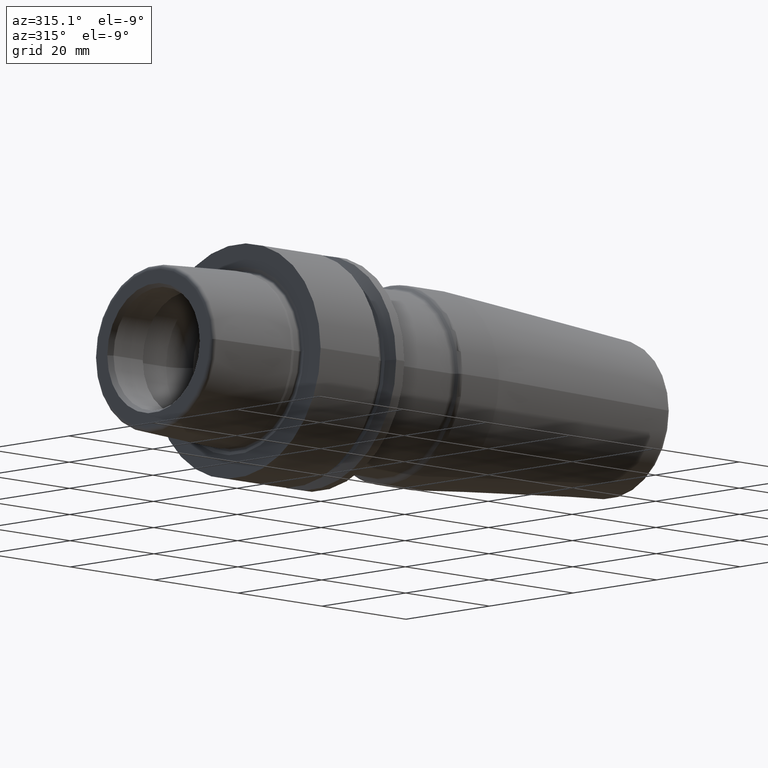
[diagram: clean part render]
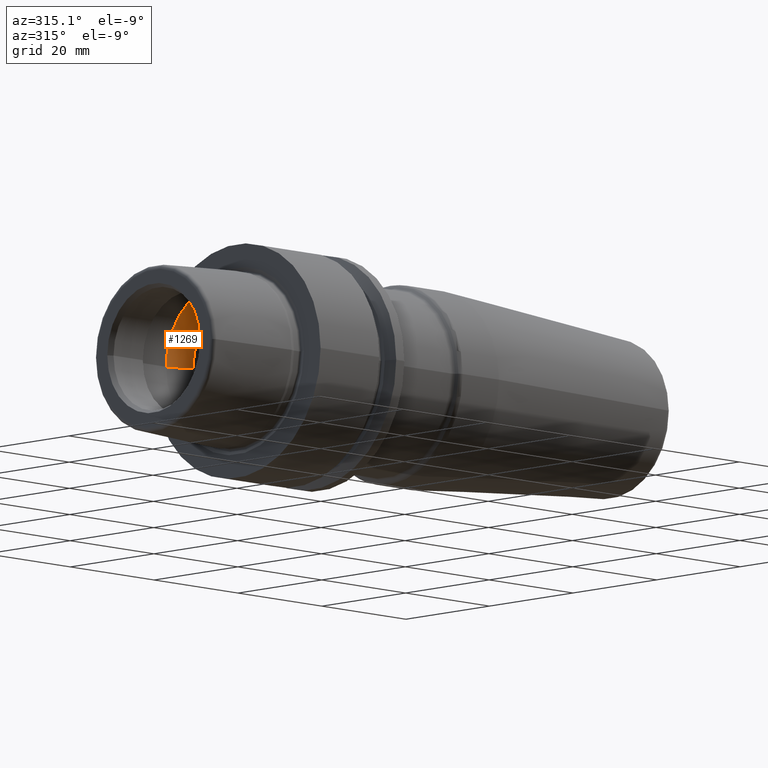
[diagram: same view with one face highlighted and labeled with its STEP entity id]
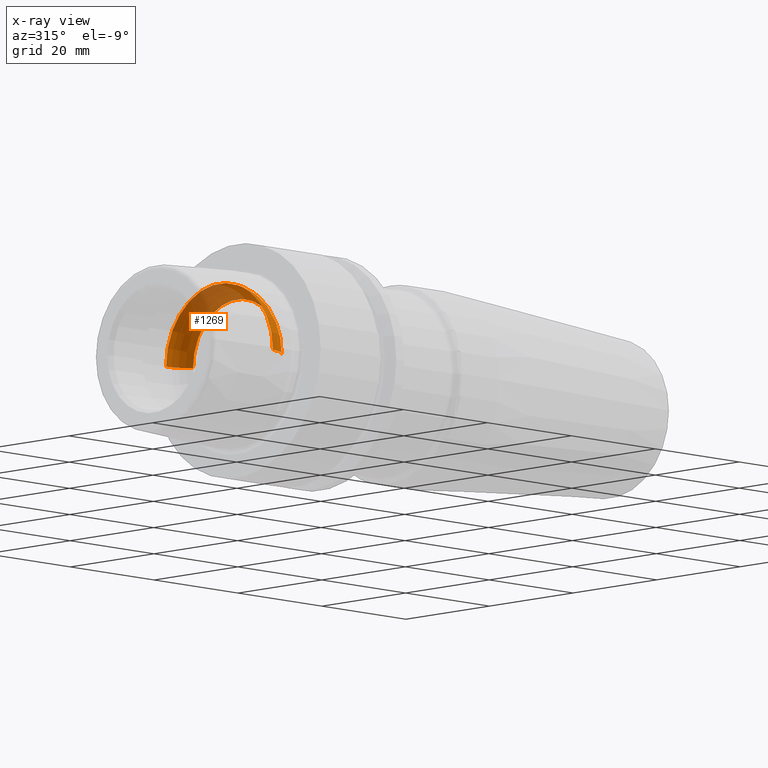
[diagram: x-ray of the same camera — body ghosted, the highlighted face saturated]
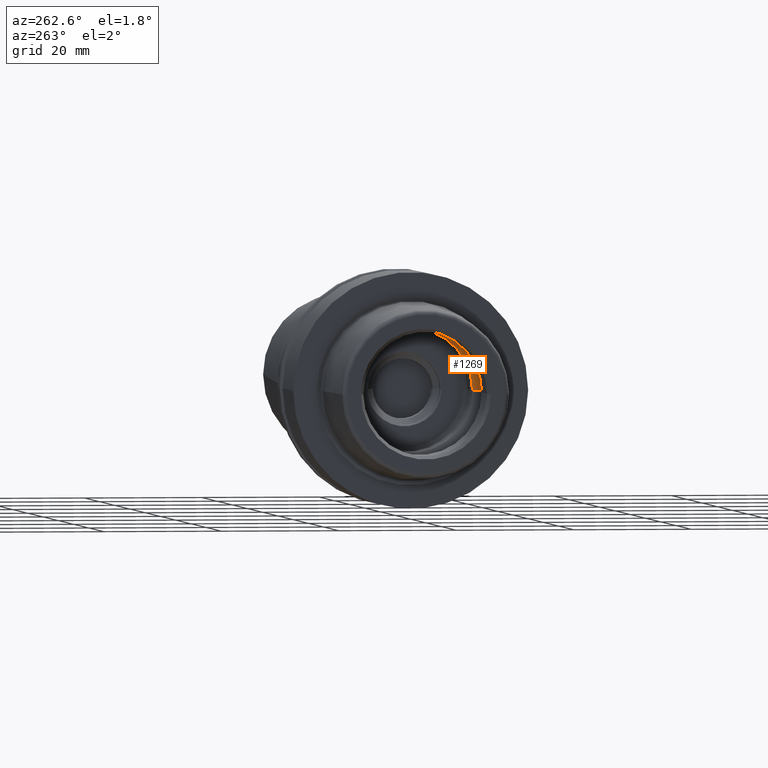
[diagram: same view with one face highlighted and labeled with its STEP entity id]
A machine part, auxiliary view. The second image highlights one B-rep face of the part: STEP entity #1269.
The next image is the same camera in x-ray: the body ghosted, the highlighted face saturated — about 35% of this face is hidden behind the body in this view.
A second angle (auxiliary view) of the same face is appended — the face is thin or edge-on in the first view.
In plain terms, the highlighted toroidal blend (fillet) surface has major radius 7.7825 mm and minor (blend) radius 5 mm.
Its self-contained STEP definition (entity closure, byte-faithful):
#152=CARTESIAN_POINT('',(-4.183373967266E0,0.E0,0.E0));
#153=DIRECTION('',(1.E0,0.E0,0.E0));
#154=DIRECTION('',(0.E0,1.E0,0.E0));
#155=AXIS2_PLACEMENT_3D('',#152,#153,#154);
#170=CARTESIAN_POINT('',(-4.183373967266E0,7.7825E0,0.E0));
#171=DIRECTION('',(0.E0,0.E0,1.E0));
#172=DIRECTION('',(8.366747934532E-1,5.477E-1,0.E0));
#173=AXIS2_PLACEMENT_3D('',#170,#171,#172);
#180=CARTESIAN_POINT('',(-4.183373967266E0,-7.7825E0,0.E0));
#181=DIRECTION('',(0.E0,0.E0,-1.E0));
#182=DIRECTION('',(8.366747934532E-1,-5.477E-1,0.E0));
#183=AXIS2_PLACEMENT_3D('',#180,#181,#182);
#185=CARTESIAN_POINT('',(0.E0,0.E0,0.E0));
#186=DIRECTION('',(1.E0,0.E0,0.E0));
#187=DIRECTION('',(0.E0,1.E0,0.E0));
#188=AXIS2_PLACEMENT_3D('',#185,#186,#187);
#892=CARTESIAN_POINT('',(0.E0,1.0521E1,0.E0));
#893=VERTEX_POINT('',#892);
#894=CARTESIAN_POINT('',(-4.183373967266E0,1.27825E1,0.E0));
#895=VERTEX_POINT('',#894);
#904=CARTESIAN_POINT('',(0.E0,-1.0521E1,0.E0));
#905=VERTEX_POINT('',#904);
#906=CARTESIAN_POINT('',(-4.183373967266E0,-1.27825E1,0.E0));
#907=VERTEX_POINT('',#906);
#1257=CARTESIAN_POINT('',(-4.183373967266E0,0.E0,0.E0));
#1258=DIRECTION('',(1.E0,0.E0,0.E0));
#1259=DIRECTION('',(0.E0,-1.E0,0.E0));
#1260=AXIS2_PLACEMENT_3D('',#1257,#1258,#1259);
#1261=TOROIDAL_SURFACE('',#1260,7.7825E0,5.E0);
#1262=ORIENTED_EDGE('',*,*,#1247,.T.);
#1263=ORIENTED_EDGE('',*,*,#1224,.T.);
#1264=ORIENTED_EDGE('',*,*,#1251,.F.);
#1266=ORIENTED_EDGE('',*,*,#1265,.F.);
#1267=EDGE_LOOP('',(#1262,#1263,#1264,#1266));
#1268=FACE_OUTER_BOUND('',#1267,.F.);
#1269=ADVANCED_FACE('',(#1268),#1261,.F.);
#156=CIRCLE('',#155,1.27825E1);
#174=CIRCLE('',#173,5.E0);
#184=CIRCLE('',#183,5.E0);
#189=CIRCLE('',#188,1.0521E1);
#1224=EDGE_CURVE('',#895,#907,#156,.T.);
#1247=EDGE_CURVE('',#893,#895,#174,.T.);
#1251=EDGE_CURVE('',#905,#907,#184,.T.);
#1265=EDGE_CURVE('',#893,#905,#189,.T.);